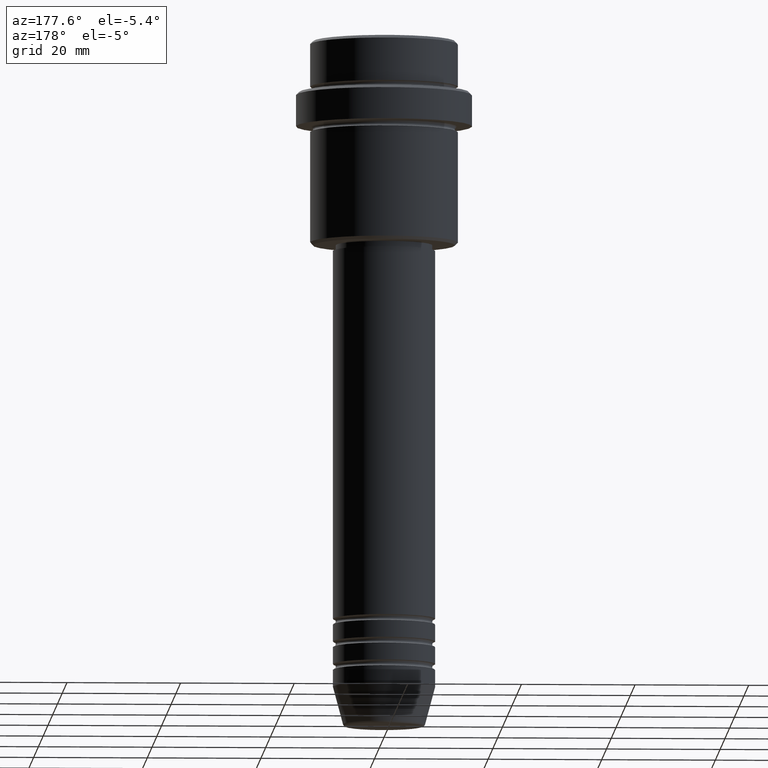
[diagram: clean part render]
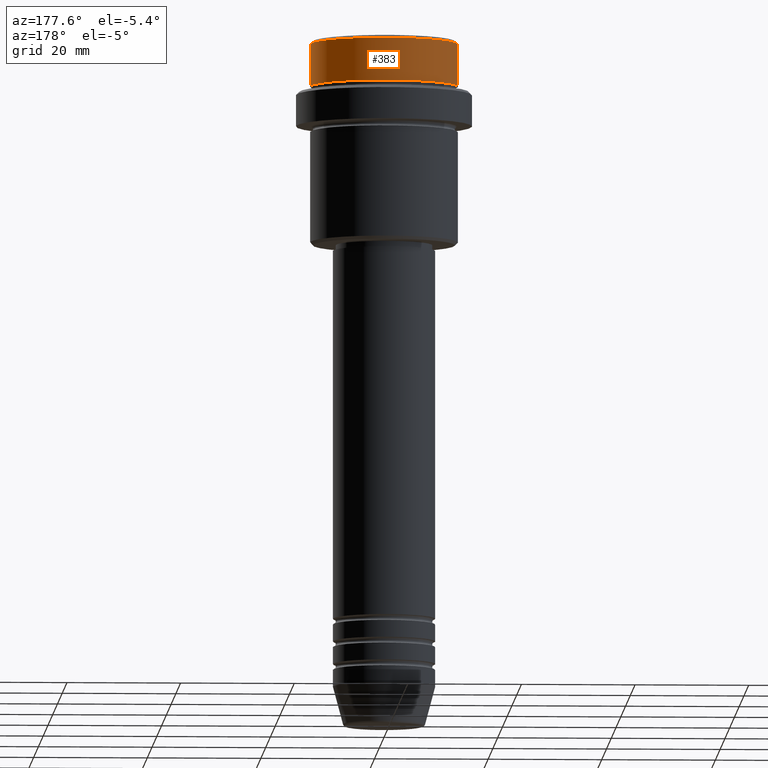
[diagram: same view with one face highlighted and labeled with its STEP entity id]
A machine part, auxiliary view. The second image highlights one B-rep face of the part: STEP entity #383.
In plain terms, the highlighted cylindrical surface (partial cylindrical patch) has radius 13 mm, axis along (-0, -0, 1).
Its self-contained STEP definition (entity closure, byte-faithful):
#43 = CARTESIAN_POINT ( 'NONE',  ( 0.000000000000000000, 0.000000000000000000, 0.000000000000000000 ) ) ;
#54 = EDGE_CURVE ( 'NONE', #491, #682, #1359, .T. ) ;
#89 = VECTOR ( 'NONE', #1073, 1000.000000000000000 ) ;
#97 = CARTESIAN_POINT ( 'NONE',  ( -12.99999999999999822, 1.592040838891558898E-15, -7.999999999999998224 ) ) ;
#103 = CARTESIAN_POINT ( 'NONE',  ( 12.99999999999999822, 0.000000000000000000, -0.5000000000000177636 ) ) ;
#126 = DIRECTION ( 'NONE',  ( 1.000000000000000000, 0.000000000000000000, 0.000000000000000000 ) ) ;
#142 = CARTESIAN_POINT ( 'NONE',  ( 12.99999999999999822, 0.000000000000000000, -7.999999999999998224 ) ) ;
#166 = DIRECTION ( 'NONE',  ( 0.000000000000000000, 0.000000000000000000, -1.000000000000000000 ) ) ;
#225 = CARTESIAN_POINT ( 'NONE',  ( 0.000000000000000000, 0.000000000000000000, -7.999999999999998224 ) ) ;
#264 = CARTESIAN_POINT ( 'NONE',  ( 0.000000000000000000, 0.000000000000000000, -0.5000000000000177636 ) ) ;
#292 = ORIENTED_EDGE ( 'NONE', *, *, #301, .T. ) ;
#301 = EDGE_CURVE ( 'NONE', #1281, #786, #675, .T. ) ;
#377 = DIRECTION ( 'NONE',  ( -0.000000000000000000, -0.000000000000000000, 1.000000000000000000 ) ) ;
#383 = ADVANCED_FACE ( 'NONE', ( #593 ), #1007, .T. ) ;
#385 = DIRECTION ( 'NONE',  ( 1.000000000000000000, 0.000000000000000000, 0.000000000000000000 ) ) ;
#449 = ORIENTED_EDGE ( 'NONE', *, *, #619, .F. ) ;
#491 = VERTEX_POINT ( 'NONE', #798 ) ;
#499 = AXIS2_PLACEMENT_3D ( 'NONE', #225, #1094, #648 ) ;
#593 = FACE_OUTER_BOUND ( 'NONE', #598, .T. ) ;
#598 = EDGE_LOOP ( 'NONE', ( #292, #1271, #1414, #449 ) ) ;
#619 = EDGE_CURVE ( 'NONE', #1281, #682, #723, .T. ) ;
#643 = LINE ( 'NONE', #1170, #89 ) ;
#648 = DIRECTION ( 'NONE',  ( 1.000000000000000000, 0.000000000000000000, 0.000000000000000000 ) ) ;
#675 = CIRCLE ( 'NONE', #499, 12.99999999999999822 ) ;
#682 = VERTEX_POINT ( 'NONE', #103 ) ;
#716 = CARTESIAN_POINT ( 'NONE',  ( 12.99999999999999822, 0.000000000000000000, 0.000000000000000000 ) ) ;
#723 = LINE ( 'NONE', #716, #792 ) ;
#764 = AXIS2_PLACEMENT_3D ( 'NONE', #43, #1315, #126 ) ;
#772 = EDGE_CURVE ( 'NONE', #786, #491, #643, .T. ) ;
#786 = VERTEX_POINT ( 'NONE', #97 ) ;
#792 = VECTOR ( 'NONE', #377, 1000.000000000000000 ) ;
#798 = CARTESIAN_POINT ( 'NONE',  ( -12.99999999999999822, 1.592040838891558898E-15, -0.5000000000000177636 ) ) ;
#1007 = CYLINDRICAL_SURFACE ( 'NONE', #764, 12.99999999999999822 ) ;
#1073 = DIRECTION ( 'NONE',  ( -0.000000000000000000, -0.000000000000000000, 1.000000000000000000 ) ) ;
#1094 = DIRECTION ( 'NONE',  ( -0.000000000000000000, -0.000000000000000000, 1.000000000000000000 ) ) ;
#1170 = CARTESIAN_POINT ( 'NONE',  ( -12.99999999999999822, 1.592040838891558898E-15, 0.000000000000000000 ) ) ;
#1172 = AXIS2_PLACEMENT_3D ( 'NONE', #264, #166, #385 ) ;
#1271 = ORIENTED_EDGE ( 'NONE', *, *, #772, .T. ) ;
#1281 = VERTEX_POINT ( 'NONE', #142 ) ;
#1315 = DIRECTION ( 'NONE',  ( -0.000000000000000000, -0.000000000000000000, 1.000000000000000000 ) ) ;
#1359 = CIRCLE ( 'NONE', #1172, 12.99999999999999822 ) ;
#1414 = ORIENTED_EDGE ( 'NONE', *, *, #54, .T. ) ;